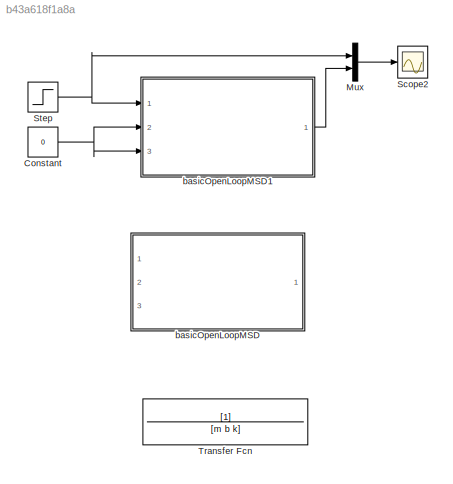
MODEL slx_b43a618f1a8a
KIND model
CONFIG AbsTol = auto
CONFIG EnableMultiTasking = off
CONFIG FixedStep = 0.001
CONFIG MaxStep = auto
CONFIG MinStep = auto
CONFIG RelTol = 1e-3
CONFIG SampleTimeConstraint = Unconstrained
CONFIG SolverName = VariableStepAuto
CONFIG StartTime = 0.0
CONFIG StopTime = 10
WORKSPACE source: mxarray member
WORKSPACE b: Simulink.Parameter (value not decoded)
WORKSPACE m: Simulink.Parameter (value not decoded)
BLOCK [Constant] Constant
  Commented = on
  Value = 0
BLOCK [Mux] Mux
  Commented = on
  DisplayOption = bar
  Inputs = 2
  Ports = [2, 1]
BLOCK [Scope] Scope2
  Commented = on
  Floating = off
  NumInputPorts = 1
  Ports = [1]
  ScopeSpecificationString = Simulink.scopes.TimeScopeBlockCfg('CurrentConfiguration', extmgr.ConfigurationSet(extmgr.Configuration('Core','General UI',true),extmgr.Configuration('Core','Source UI',true),extmgr.Configuration('Sources','WiredSimulink',true,'DataLoggingVariableName','ScopeData1'),extmgr.Configuration('Visuals','Time Domain',true,'SerializedDisplays',{struct('MinYLimReal','-0.125','MaxYLimReal','1.125','YLabelRe...<+1427ch>
BLOCK [Step] Step
  Commented = on
  SampleTime = 0
BLOCK [TransferFcn] Transfer Fcn
  Denominator = [m b k]
BLOCK [ModelReference] basicOpenLoopMSD
  ModelNameDialog = basicOpenLoopMSD
  ModelReferenceVersion = 1.10
  Ports = [3, 1]
BLOCK [ModelReference] basicOpenLoopMSD1
  Commented = on
  ModelNameDialog = basicOpenLoopMSD1
  ModelReferenceVersion = 1.9
  Ports = [3, 1]
NET Constant:1 -> basicOpenLoopMSD1:2, basicOpenLoopMSD1:3
LINE Mux:1 -> Scope2:1
NET Step:1 -> Mux:1, basicOpenLoopMSD1:1
LINE basicOpenLoopMSD1:1 -> Mux:2
note: NET lines group one-source signal fan-out (src -> all destinations, sorted); 1:1 wires keep LINE
